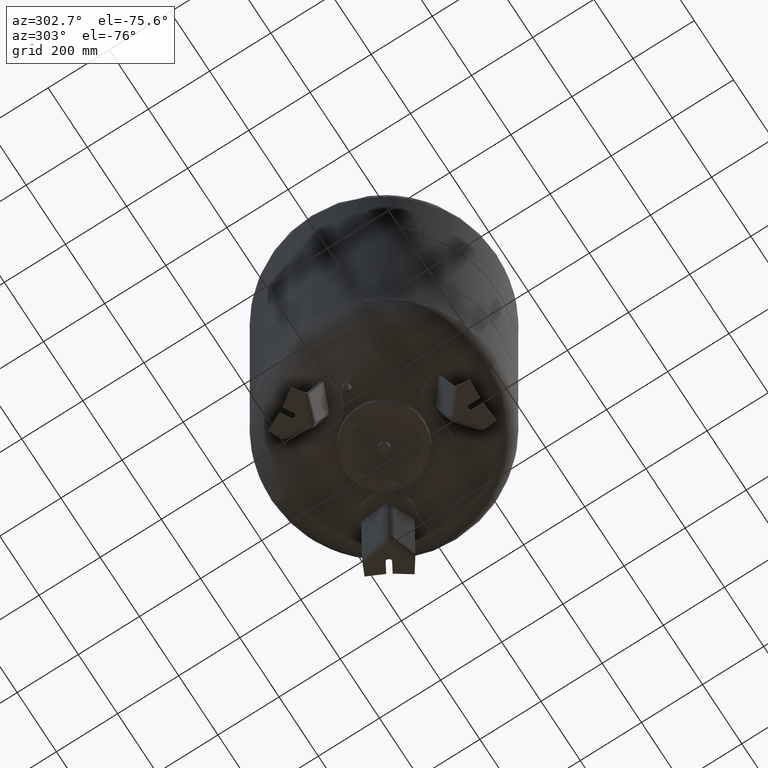
[diagram: clean part render]
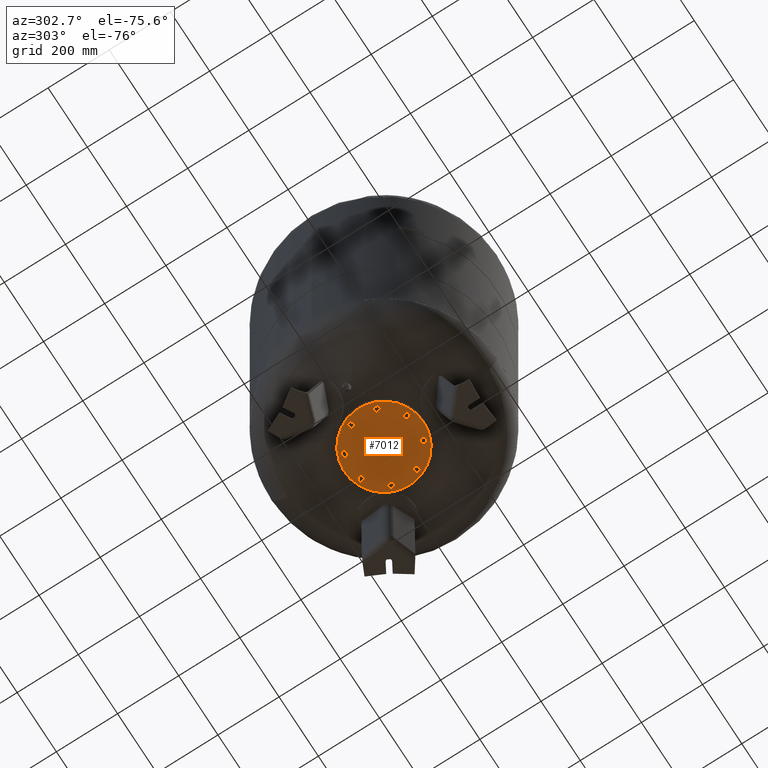
[diagram: same view with one face highlighted and labeled with its STEP entity id]
A machine part, auxiliary view. The second image highlights one B-rep face of the part: STEP entity #7012.
In plain terms, the highlighted planar face has unit normal (0, 0, 1).
Its self-contained STEP definition (entity closure, byte-faithful):
#3040=CARTESIAN_POINT('',(-120.104339226467270,-49.748846207461675,165.0));
#3041=VERTEX_POINT('',#3040);
#3050=CARTESIAN_POINT('',(120.104339226467290,49.748846207461661,165.0));
#3051=VERTEX_POINT('',#3050);
#3052=CARTESIAN_POINT('',(1.171630E-015,-2.828565E-015,165.0));
#3053=DIRECTION('',(0.0,0.0,1.0));
#3054=DIRECTION('',(-0.923879532511287,-0.382683432365090,0.0));
#3055=AXIS2_PLACEMENT_3D('',#3052,#3053,#3054);
#3056=CIRCLE('',#3055,130.0);
#3057=EDGE_CURVE('',#3041,#3051,#3056,.T.);
#3084=CARTESIAN_POINT('',(-15.567370122815184,-6.448215835351768,165.0));
#3085=VERTEX_POINT('',#3084);
#3101=CARTESIAN_POINT('',(15.567370122815188,6.448215835351761,165.0));
#3102=VERTEX_POINT('',#3101);
#3109=CARTESIAN_POINT('',(1.171630E-015,-2.828565E-015,165.0));
#3110=DIRECTION('',(0.0,0.0,1.0));
#3111=DIRECTION('',(-0.923879532511287,-0.382683432365090,0.0));
#3112=AXIS2_PLACEMENT_3D('',#3109,#3110,#3111);
#3113=CIRCLE('',#3112,16.850000000000005);
#3114=EDGE_CURVE('',#3085,#3102,#3113,.T.);
#4960=CARTESIAN_POINT('',(-34.766493326885701,-96.003251377674417,165.0));
#4961=VERTEX_POINT('',#4960);
#4962=CARTESIAN_POINT('',(-43.300926875592538,-92.468173254628084,165.0));
#4963=VERTEX_POINT('',#4962);
#4964=CARTESIAN_POINT('',(-34.766493326885701,-96.003251377674417,165.0));
#4965=DIRECTION('',(-0.923879532511286,0.382683432365091,0.0));
#4966=VECTOR('',#4965,9.237604307034024);
#4967=LINE('',#4964,#4966);
#4968=EDGE_CURVE('',#4961,#4963,#4967,.T.);
#5000=CARTESIAN_POINT('',(-33.560744011452989,-105.161826699287860,165.0));
#5001=VERTEX_POINT('',#5000);
#5002=CARTESIAN_POINT('',(-33.560744011452989,-105.161826699287860,165.0));
#5003=DIRECTION('',(-0.130526192220053,0.991444861373810,0.0));
#5004=VECTOR('',#5003,9.237604307034005);
#5005=LINE('',#5002,#5004);
#5006=EDGE_CURVE('',#5001,#4961,#5005,.T.);
#5031=CARTESIAN_POINT('',(-40.889428244727128,-110.785323897855010,165.0));
#5032=VERTEX_POINT('',#5031);
#5033=CARTESIAN_POINT('',(-40.889428244727128,-110.785323897855010,165.0));
#5034=DIRECTION('',(0.793353340291235,0.608761429008721,0.0));
#5035=VECTOR('',#5034,9.237604307034024);
#5036=LINE('',#5033,#5035);
#5037=EDGE_CURVE('',#5032,#5001,#5036,.T.);
#5062=CARTESIAN_POINT('',(-49.423861793433986,-107.250245774808700,165.0));
#5063=VERTEX_POINT('',#5062);
#5064=CARTESIAN_POINT('',(-49.423861793433986,-107.250245774808700,165.0));
#5065=DIRECTION('',(0.923879532511287,-0.382683432365088,0.0));
#5066=VECTOR('',#5065,9.237604307034033);
#5067=LINE('',#5064,#5066);
#5068=EDGE_CURVE('',#5063,#5032,#5067,.T.);
#5093=CARTESIAN_POINT('',(-50.629611108866676,-98.091670453195235,165.0));
#5094=VERTEX_POINT('',#5093);
#5095=CARTESIAN_POINT('',(-43.300926875592538,-92.468173254628084,165.0));
#5096=DIRECTION('',(-0.793353340291235,-0.608761429008721,0.0));
#5097=VECTOR('',#5096,9.237604307034024);
#5098=LINE('',#5095,#5097);
#5099=EDGE_CURVE('',#4963,#5094,#5098,.T.);
#5124=CARTESIAN_POINT('',(-50.629611108866676,-98.091670453195235,165.0));
#5125=DIRECTION('',(0.130526192220051,-0.991444861373811,0.0));
#5126=VECTOR('',#5125,9.237604307034030);
#5127=LINE('',#5124,#5126);
#5128=EDGE_CURVE('',#5094,#5063,#5127,.T.);
#5206=CARTESIAN_POINT('',(43.300926875592602,-92.468173254628084,165.0));
#5207=VERTEX_POINT('',#5206);
#5208=CARTESIAN_POINT('',(34.766493326885758,-96.003251377674403,165.0));
#5209=VERTEX_POINT('',#5208);
#5210=CARTESIAN_POINT('',(43.300926875592602,-92.468173254628084,165.0));
#5211=DIRECTION('',(-0.923879532511287,-0.382683432365090,0.0));
#5212=VECTOR('',#5211,9.237604307034026);
#5213=LINE('',#5210,#5212);
#5214=EDGE_CURVE('',#5207,#5209,#5213,.T.);
#5246=CARTESIAN_POINT('',(50.629611108866733,-98.091670453195221,165.0));
#5247=VERTEX_POINT('',#5246);
#5248=CARTESIAN_POINT('',(50.629611108866733,-98.091670453195221,165.0));
#5249=DIRECTION('',(-0.793353340291235,0.608761429008721,0.0));
#5250=VECTOR('',#5249,9.237604307034008);
#5251=LINE('',#5248,#5250);
#5252=EDGE_CURVE('',#5247,#5207,#5251,.T.);
#5277=CARTESIAN_POINT('',(49.423861793434035,-107.250245774808680,165.0));
#5278=VERTEX_POINT('',#5277);
#5279=CARTESIAN_POINT('',(49.423861793434035,-107.250245774808680,165.0));
#5280=DIRECTION('',(0.130526192220051,0.991444861373810,0.0));
#5281=VECTOR('',#5280,9.237604307034017);
#5282=LINE('',#5279,#5281);
#5283=EDGE_CURVE('',#5278,#5247,#5282,.T.);
#5308=CARTESIAN_POINT('',(40.889428244727185,-110.785323897854990,165.0));
#5309=VERTEX_POINT('',#5308);
#5310=CARTESIAN_POINT('',(40.889428244727185,-110.785323897854990,165.0));
#5311=DIRECTION('',(0.923879532511287,0.382683432365090,0.0));
#5312=VECTOR('',#5311,9.237604307034031);
#5313=LINE('',#5310,#5312);
#5314=EDGE_CURVE('',#5309,#5278,#5313,.T.);
#5339=CARTESIAN_POINT('',(33.560744011453068,-105.161826699287840,165.0));
#5340=VERTEX_POINT('',#5339);
#5341=CARTESIAN_POINT('',(34.766493326885758,-96.003251377674403,165.0));
#5342=DIRECTION('',(-0.130526192220051,-0.991444861373810,0.0));
#5343=VECTOR('',#5342,9.237604307034003);
#5344=LINE('',#5341,#5343);
#5345=EDGE_CURVE('',#5209,#5340,#5344,.T.);
#5370=CARTESIAN_POINT('',(33.560744011453068,-105.161826699287840,165.0));
#5371=DIRECTION('',(0.793353340291234,-0.608761429008722,0.0));
#5372=VECTOR('',#5371,9.237604307034006);
#5373=LINE('',#5370,#5372);
#5374=EDGE_CURVE('',#5340,#5309,#5373,.T.);
#5452=CARTESIAN_POINT('',(96.003251377674403,-34.766493326885708,165.0));
#5453=VERTEX_POINT('',#5452);
#5454=CARTESIAN_POINT('',(92.468173254628098,-43.300926875592552,165.0));
#5455=VERTEX_POINT('',#5454);
#5456=CARTESIAN_POINT('',(96.003251377674403,-34.766493326885708,165.0));
#5457=DIRECTION('',(-0.382683432365089,-0.923879532511287,0.0));
#5458=VECTOR('',#5457,9.237604307034019);
#5459=LINE('',#5456,#5458);
#5460=EDGE_CURVE('',#5453,#5455,#5459,.T.);
#5492=CARTESIAN_POINT('',(105.161826699287870,-33.560744011453004,165.0));
#5493=VERTEX_POINT('',#5492);
#5494=CARTESIAN_POINT('',(105.161826699287870,-33.560744011453004,165.0));
#5495=DIRECTION('',(-0.991444861373810,-0.130526192220052,0.0));
#5496=VECTOR('',#5495,9.237604307034031);
#5497=LINE('',#5494,#5496);
#5498=EDGE_CURVE('',#5493,#5453,#5497,.T.);
#5523=CARTESIAN_POINT('',(110.785323897855010,-40.889428244727164,165.0));
#5524=VERTEX_POINT('',#5523);
#5525=CARTESIAN_POINT('',(110.785323897855010,-40.889428244727164,165.0));
#5526=DIRECTION('',(-0.608761429008719,0.793353340291236,0.0));
#5527=VECTOR('',#5526,9.237604307034031);
#5528=LINE('',#5525,#5527);
#5529=EDGE_CURVE('',#5524,#5493,#5528,.T.);
#5554=CARTESIAN_POINT('',(107.250245774808690,-49.423861793434014,165.0));
#5555=VERTEX_POINT('',#5554);
#5556=CARTESIAN_POINT('',(107.250245774808690,-49.423861793434014,165.0));
#5557=DIRECTION('',(0.382683432365090,0.923879532511287,0.0));
#5558=VECTOR('',#5557,9.237604307034031);
#5559=LINE('',#5556,#5558);
#5560=EDGE_CURVE('',#5555,#5524,#5559,.T.);
#5585=CARTESIAN_POINT('',(98.091670453195235,-50.629611108866698,165.0));
#5586=VERTEX_POINT('',#5585);
#5587=CARTESIAN_POINT('',(92.468173254628098,-43.300926875592552,165.0));
#5588=DIRECTION('',(0.608761429008720,-0.793353340291236,0.0));
#5589=VECTOR('',#5588,9.237604307034021);
#5590=LINE('',#5587,#5589);
#5591=EDGE_CURVE('',#5455,#5586,#5590,.T.);
#5616=CARTESIAN_POINT('',(98.091670453195235,-50.629611108866698,165.0));
#5617=DIRECTION('',(0.991444861373811,0.130526192220050,0.0));
#5618=VECTOR('',#5617,9.237604307034015);
#5619=LINE('',#5616,#5618);
#5620=EDGE_CURVE('',#5586,#5555,#5619,.T.);
#5698=CARTESIAN_POINT('',(92.468173254628084,43.300926875592594,165.0));
#5699=VERTEX_POINT('',#5698);
#5700=CARTESIAN_POINT('',(96.003251377674403,34.766493326885758,165.0));
#5701=VERTEX_POINT('',#5700);
#5702=CARTESIAN_POINT('',(92.468173254628084,43.300926875592594,165.0));
#5703=DIRECTION('',(0.382683432365090,-0.923879532511287,0.0));
#5704=VECTOR('',#5703,9.237604307034019);
#5705=LINE('',#5702,#5704);
#5706=EDGE_CURVE('',#5699,#5701,#5705,.T.);
#5738=CARTESIAN_POINT('',(98.091670453195221,50.629611108866733,165.0));
#5739=VERTEX_POINT('',#5738);
#5740=CARTESIAN_POINT('',(98.091670453195221,50.629611108866733,165.0));
#5741=DIRECTION('',(-0.608761429008720,-0.793353340291235,0.0));
#5742=VECTOR('',#5741,9.237604307034015);
#5743=LINE('',#5740,#5742);
#5744=EDGE_CURVE('',#5739,#5699,#5743,.T.);
#5769=CARTESIAN_POINT('',(107.250245774808680,49.423861793434028,165.0));
#5770=VERTEX_POINT('',#5769);
#5771=CARTESIAN_POINT('',(107.250245774808680,49.423861793434028,165.0));
#5772=DIRECTION('',(-0.991444861373810,0.130526192220052,0.0));
#5773=VECTOR('',#5772,9.237604307034019);
#5774=LINE('',#5771,#5773);
#5775=EDGE_CURVE('',#5770,#5739,#5774,.T.);
#5800=CARTESIAN_POINT('',(110.785323897854990,40.889428244727178,165.0));
#5801=VERTEX_POINT('',#5800);
#5802=CARTESIAN_POINT('',(110.785323897854990,40.889428244727178,165.0));
#5803=DIRECTION('',(-0.382683432365090,0.923879532511287,0.0));
#5804=VECTOR('',#5803,9.237604307034031);
#5805=LINE('',#5802,#5804);
#5806=EDGE_CURVE('',#5801,#5770,#5805,.T.);
#5831=CARTESIAN_POINT('',(105.161826699287840,33.560744011453060,165.0));
#5832=VERTEX_POINT('',#5831);
#5833=CARTESIAN_POINT('',(96.003251377674403,34.766493326885758,165.0));
#5834=DIRECTION('',(0.991444861373810,-0.130526192220052,0.0));
#5835=VECTOR('',#5834,9.237604307034003);
#5836=LINE('',#5833,#5835);
#5837=EDGE_CURVE('',#5701,#5832,#5836,.T.);
#5862=CARTESIAN_POINT('',(105.161826699287840,33.560744011453060,165.0));
#5863=DIRECTION('',(0.608761429008722,0.793353340291234,0.0));
#5864=VECTOR('',#5863,9.237604307034006);
#5865=LINE('',#5862,#5864);
#5866=EDGE_CURVE('',#5832,#5801,#5865,.T.);
#5944=CARTESIAN_POINT('',(34.766493326885723,96.003251377674417,165.0));
#5945=VERTEX_POINT('',#5944);
#5946=CARTESIAN_POINT('',(43.300926875592552,92.468173254628084,165.0));
#5947=VERTEX_POINT('',#5946);
#5948=CARTESIAN_POINT('',(34.766493326885723,96.003251377674417,165.0));
#5949=DIRECTION('',(0.923879532511286,-0.382683432365092,0.0));
#5950=VECTOR('',#5949,9.237604307034017);
#5951=LINE('',#5948,#5950);
#5952=EDGE_CURVE('',#5945,#5947,#5951,.T.);
#5984=CARTESIAN_POINT('',(33.560744011453025,105.161826699287860,165.0));
#5985=VERTEX_POINT('',#5984);
#5986=CARTESIAN_POINT('',(33.560744011453025,105.161826699287860,165.0));
#5987=DIRECTION('',(0.130526192220052,-0.991444861373810,0.0));
#5988=VECTOR('',#5987,9.237604307034003);
#5989=LINE('',#5986,#5988);
#5990=EDGE_CURVE('',#5985,#5945,#5989,.T.);
#6015=CARTESIAN_POINT('',(40.889428244727164,110.785323897855010,165.0));
#6016=VERTEX_POINT('',#6015);
#6017=CARTESIAN_POINT('',(40.889428244727164,110.785323897855010,165.0));
#6018=DIRECTION('',(-0.793353340291235,-0.608761429008721,0.0));
#6019=VECTOR('',#6018,9.237604307034024);
#6020=LINE('',#6017,#6019);
#6021=EDGE_CURVE('',#6016,#5985,#6020,.T.);
#6046=CARTESIAN_POINT('',(49.423861793434014,107.250245774808690,165.0));
#6047=VERTEX_POINT('',#6046);
#6048=CARTESIAN_POINT('',(49.423861793434014,107.250245774808690,165.0));
#6049=DIRECTION('',(-0.923879532511287,0.382683432365090,0.0));
#6050=VECTOR('',#6049,9.237604307034031);
#6051=LINE('',#6048,#6050);
#6052=EDGE_CURVE('',#6047,#6016,#6051,.T.);
#6077=CARTESIAN_POINT('',(50.629611108866698,98.091670453195235,165.0));
#6078=VERTEX_POINT('',#6077);
#6079=CARTESIAN_POINT('',(43.300926875592552,92.468173254628084,165.0));
#6080=DIRECTION('',(0.793353340291235,0.608761429008721,0.0));
#6081=VECTOR('',#6080,9.237604307034030);
#6082=LINE('',#6079,#6081);
#6083=EDGE_CURVE('',#5947,#6078,#6082,.T.);
#6108=CARTESIAN_POINT('',(50.629611108866698,98.091670453195235,165.0));
#6109=DIRECTION('',(-0.130526192220050,0.991444861373811,0.0));
#6110=VECTOR('',#6109,9.237604307034015);
#6111=LINE('',#6108,#6110);
#6112=EDGE_CURVE('',#6078,#6047,#6111,.T.);
#6190=CARTESIAN_POINT('',(-43.300926875592580,92.468173254628084,165.0));
#6191=VERTEX_POINT('',#6190);
#6192=CARTESIAN_POINT('',(-34.766493326885751,96.003251377674403,165.0));
#6193=VERTEX_POINT('',#6192);
#6194=CARTESIAN_POINT('',(-43.300926875592580,92.468173254628084,165.0));
#6195=DIRECTION('',(0.923879532511287,0.382683432365090,0.0));
#6196=VECTOR('',#6195,9.237604307034012);
#6197=LINE('',#6194,#6196);
#6198=EDGE_CURVE('',#6191,#6193,#6197,.T.);
#6230=CARTESIAN_POINT('',(-50.629611108866705,98.091670453195235,165.0));
#6231=VERTEX_POINT('',#6230);
#6232=CARTESIAN_POINT('',(-50.629611108866705,98.091670453195235,165.0));
#6233=DIRECTION('',(0.793353340291234,-0.608761429008722,0.0));
#6234=VECTOR('',#6233,9.237604307034012);
#6235=LINE('',#6232,#6234);
#6236=EDGE_CURVE('',#6231,#6191,#6235,.T.);
#6261=CARTESIAN_POINT('',(-49.423861793434014,107.250245774808680,165.0));
#6262=VERTEX_POINT('',#6261);
#6263=CARTESIAN_POINT('',(-49.423861793434014,107.250245774808680,165.0));
#6264=DIRECTION('',(-0.130526192220051,-0.991444861373810,0.0));
#6265=VECTOR('',#6264,9.237604307034003);
#6266=LINE('',#6263,#6265);
#6267=EDGE_CURVE('',#6262,#6231,#6266,.T.);
#6292=CARTESIAN_POINT('',(-40.889428244727171,110.785323897855010,165.0));
#6293=VERTEX_POINT('',#6292);
#6294=CARTESIAN_POINT('',(-40.889428244727171,110.785323897855010,165.0));
#6295=DIRECTION('',(-0.923879532511286,-0.382683432365091,0.0));
#6296=VECTOR('',#6295,9.237604307034031);
#6297=LINE('',#6294,#6296);
#6298=EDGE_CURVE('',#6293,#6262,#6297,.T.);
#6323=CARTESIAN_POINT('',(-33.560744011453032,105.161826699287860,165.0));
#6324=VERTEX_POINT('',#6323);
#6325=CARTESIAN_POINT('',(-34.766493326885751,96.003251377674403,165.0));
#6326=DIRECTION('',(0.130526192220054,0.991444861373810,0.0));
#6327=VECTOR('',#6326,9.237604307034019);
#6328=LINE('',#6325,#6327);
#6329=EDGE_CURVE('',#6193,#6324,#6328,.T.);
#6354=CARTESIAN_POINT('',(-33.560744011453032,105.161826699287860,165.0));
#6355=DIRECTION('',(-0.793353340291235,0.608761429008721,0.0));
#6356=VECTOR('',#6355,9.237604307034024);
#6357=LINE('',#6354,#6356);
#6358=EDGE_CURVE('',#6324,#6293,#6357,.T.);
#6436=CARTESIAN_POINT('',(-96.003251377674417,34.766493326885723,165.0));
#6437=VERTEX_POINT('',#6436);
#6438=CARTESIAN_POINT('',(-92.468173254628084,43.300926875592552,165.0));
#6439=VERTEX_POINT('',#6438);
#6440=CARTESIAN_POINT('',(-96.003251377674417,34.766493326885723,165.0));
#6441=DIRECTION('',(0.382683432365092,0.923879532511286,0.0));
#6442=VECTOR('',#6441,9.237604307034017);
#6443=LINE('',#6440,#6442);
#6444=EDGE_CURVE('',#6437,#6439,#6443,.T.);
#6476=CARTESIAN_POINT('',(-105.161826699287860,33.560744011453025,165.0));
#6477=VERTEX_POINT('',#6476);
#6478=CARTESIAN_POINT('',(-105.161826699287860,33.560744011453025,165.0));
#6479=DIRECTION('',(0.991444861373810,0.130526192220052,0.0));
#6480=VECTOR('',#6479,9.237604307034003);
#6481=LINE('',#6478,#6480);
#6482=EDGE_CURVE('',#6477,#6437,#6481,.T.);
#6507=CARTESIAN_POINT('',(-110.785323897855010,40.889428244727164,165.0));
#6508=VERTEX_POINT('',#6507);
#6509=CARTESIAN_POINT('',(-110.785323897855010,40.889428244727164,165.0));
#6510=DIRECTION('',(0.608761429008721,-0.793353340291235,0.0));
#6511=VECTOR('',#6510,9.237604307034024);
#6512=LINE('',#6509,#6511);
#6513=EDGE_CURVE('',#6508,#6477,#6512,.T.);
#6538=CARTESIAN_POINT('',(-107.250245774808690,49.423861793434014,165.0));
#6539=VERTEX_POINT('',#6538);
#6540=CARTESIAN_POINT('',(-107.250245774808690,49.423861793434014,165.0));
#6541=DIRECTION('',(-0.382683432365090,-0.923879532511287,0.0));
#6542=VECTOR('',#6541,9.237604307034031);
#6543=LINE('',#6540,#6542);
#6544=EDGE_CURVE('',#6539,#6508,#6543,.T.);
#6569=CARTESIAN_POINT('',(-98.091670453195235,50.629611108866698,165.0));
#6570=VERTEX_POINT('',#6569);
#6571=CARTESIAN_POINT('',(-92.468173254628084,43.300926875592552,165.0));
#6572=DIRECTION('',(-0.608761429008721,0.793353340291235,0.0));
#6573=VECTOR('',#6572,9.237604307034030);
#6574=LINE('',#6571,#6573);
#6575=EDGE_CURVE('',#6439,#6570,#6574,.T.);
#6600=CARTESIAN_POINT('',(-98.091670453195235,50.629611108866698,165.0));
#6601=DIRECTION('',(-0.991444861373811,-0.130526192220050,0.0));
#6602=VECTOR('',#6601,9.237604307034015);
#6603=LINE('',#6600,#6602);
#6604=EDGE_CURVE('',#6570,#6539,#6603,.T.);
#6682=CARTESIAN_POINT('',(-92.468173254628084,-43.300926875592587,165.0));
#6683=VERTEX_POINT('',#6682);
#6684=CARTESIAN_POINT('',(-96.003251377674403,-34.766493326885744,165.0));
#6685=VERTEX_POINT('',#6684);
#6686=CARTESIAN_POINT('',(-92.468173254628084,-43.300926875592587,165.0));
#6687=DIRECTION('',(-0.382683432365090,0.923879532511287,0.0));
#6688=VECTOR('',#6687,9.237604307034026);
#6689=LINE('',#6686,#6688);
#6690=EDGE_CURVE('',#6683,#6685,#6689,.T.);
#6722=CARTESIAN_POINT('',(-98.091670453195221,-50.629611108866719,165.0));
#6723=VERTEX_POINT('',#6722);
#6724=CARTESIAN_POINT('',(-98.091670453195221,-50.629611108866719,165.0));
#6725=DIRECTION('',(0.608761429008721,0.793353340291235,0.0));
#6726=VECTOR('',#6725,9.237604307034008);
#6727=LINE('',#6724,#6726);
#6728=EDGE_CURVE('',#6723,#6683,#6727,.T.);
#6753=CARTESIAN_POINT('',(-107.250245774808690,-49.423861793434014,165.0));
#6754=VERTEX_POINT('',#6753);
#6755=CARTESIAN_POINT('',(-107.250245774808690,-49.423861793434014,165.0));
#6756=DIRECTION('',(0.991444861373810,-0.130526192220052,0.0));
#6757=VECTOR('',#6756,9.237604307034031);
#6758=LINE('',#6755,#6757);
#6759=EDGE_CURVE('',#6754,#6723,#6758,.T.);
#6784=CARTESIAN_POINT('',(-110.785323897855010,-40.889428244727164,165.0));
#6785=VERTEX_POINT('',#6784);
#6786=CARTESIAN_POINT('',(-110.785323897855010,-40.889428244727164,165.0));
#6787=DIRECTION('',(0.382683432365090,-0.923879532511287,0.0));
#6788=VECTOR('',#6787,9.237604307034031);
#6789=LINE('',#6786,#6788);
#6790=EDGE_CURVE('',#6785,#6754,#6789,.T.);
#6815=CARTESIAN_POINT('',(-105.161826699287860,-33.560744011453039,165.0));
#6816=VERTEX_POINT('',#6815);
#6817=CARTESIAN_POINT('',(-96.003251377674403,-34.766493326885744,165.0));
#6818=DIRECTION('',(-0.991444861373810,0.130526192220052,0.0));
#6819=VECTOR('',#6818,9.237604307034019);
#6820=LINE('',#6817,#6819);
#6821=EDGE_CURVE('',#6685,#6816,#6820,.T.);
#6846=CARTESIAN_POINT('',(-105.161826699287860,-33.560744011453039,165.0));
#6847=DIRECTION('',(-0.608761429008722,-0.793353340291234,0.0));
#6848=VECTOR('',#6847,9.237604307034012);
#6849=LINE('',#6846,#6848);
#6850=EDGE_CURVE('',#6816,#6785,#6849,.T.);
#6883=CARTESIAN_POINT('',(1.171630E-015,-2.828565E-015,165.0));
#6884=DIRECTION('',(0.0,0.0,1.0));
#6885=DIRECTION('',(-0.923879532511287,-0.382683432365090,0.0));
#6886=AXIS2_PLACEMENT_3D('',#6883,#6884,#6885);
#6887=CIRCLE('',#6886,16.850000000000005);
#6888=EDGE_CURVE('',#3102,#3085,#6887,.T.);
#6925=CARTESIAN_POINT('',(1.171630E-015,-2.828565E-015,165.0));
#6926=DIRECTION('',(0.0,0.0,1.0));
#6927=DIRECTION('',(-0.923879532511287,-0.382683432365090,0.0));
#6928=AXIS2_PLACEMENT_3D('',#6925,#6926,#6927);
#6929=CIRCLE('',#6928,130.0);
#6930=EDGE_CURVE('',#3051,#3041,#6929,.T.);
#6935=CARTESIAN_POINT('',(1.171630E-015,-2.828565E-015,165.0));
#6936=DIRECTION('',(0.0,0.0,1.0));
#6937=DIRECTION('',(-0.923879532511287,-0.382683432365090,0.0));
#6938=AXIS2_PLACEMENT_3D('',#6935,#6936,#6937);
#6939=PLANE('',#6938);
#6940=ORIENTED_EDGE('',*,*,#6930,.F.);
#6941=ORIENTED_EDGE('',*,*,#3057,.F.);
#6942=EDGE_LOOP('',(#6940,#6941));
#6943=FACE_OUTER_BOUND('',#6942,.T.);
#6944=ORIENTED_EDGE('',*,*,#4968,.T.);
#6945=ORIENTED_EDGE('',*,*,#5099,.T.);
#6946=ORIENTED_EDGE('',*,*,#5128,.T.);
#6947=ORIENTED_EDGE('',*,*,#5068,.T.);
#6948=ORIENTED_EDGE('',*,*,#5037,.T.);
#6949=ORIENTED_EDGE('',*,*,#5006,.T.);
#6950=EDGE_LOOP('',(#6944,#6945,#6946,#6947,#6948,#6949));
#6951=FACE_BOUND('',#6950,.T.);
#6952=ORIENTED_EDGE('',*,*,#5214,.T.);
#6953=ORIENTED_EDGE('',*,*,#5345,.T.);
#6954=ORIENTED_EDGE('',*,*,#5374,.T.);
#6955=ORIENTED_EDGE('',*,*,#5314,.T.);
#6956=ORIENTED_EDGE('',*,*,#5283,.T.);
#6957=ORIENTED_EDGE('',*,*,#5252,.T.);
#6958=EDGE_LOOP('',(#6952,#6953,#6954,#6955,#6956,#6957));
#6959=FACE_BOUND('',#6958,.T.);
#6960=ORIENTED_EDGE('',*,*,#5460,.T.);
#6961=ORIENTED_EDGE('',*,*,#5591,.T.);
#6962=ORIENTED_EDGE('',*,*,#5620,.T.);
#6963=ORIENTED_EDGE('',*,*,#5560,.T.);
#6964=ORIENTED_EDGE('',*,*,#5529,.T.);
#6965=ORIENTED_EDGE('',*,*,#5498,.T.);
#6966=EDGE_LOOP('',(#6960,#6961,#6962,#6963,#6964,#6965));
#6967=FACE_BOUND('',#6966,.T.);
#6968=ORIENTED_EDGE('',*,*,#5706,.T.);
#6969=ORIENTED_EDGE('',*,*,#5837,.T.);
#6970=ORIENTED_EDGE('',*,*,#5866,.T.);
#6971=ORIENTED_EDGE('',*,*,#5806,.T.);
#6972=ORIENTED_EDGE('',*,*,#5775,.T.);
#6973=ORIENTED_EDGE('',*,*,#5744,.T.);
#6974=EDGE_LOOP('',(#6968,#6969,#6970,#6971,#6972,#6973));
#6975=FACE_BOUND('',#6974,.T.);
#6976=ORIENTED_EDGE('',*,*,#5952,.T.);
#6977=ORIENTED_EDGE('',*,*,#6083,.T.);
#6978=ORIENTED_EDGE('',*,*,#6112,.T.);
#6979=ORIENTED_EDGE('',*,*,#6052,.T.);
#6980=ORIENTED_EDGE('',*,*,#6021,.T.);
#6981=ORIENTED_EDGE('',*,*,#5990,.T.);
#6982=EDGE_LOOP('',(#6976,#6977,#6978,#6979,#6980,#6981));
#6983=FACE_BOUND('',#6982,.T.);
#6984=ORIENTED_EDGE('',*,*,#6198,.T.);
#6985=ORIENTED_EDGE('',*,*,#6329,.T.);
#6986=ORIENTED_EDGE('',*,*,#6358,.T.);
#6987=ORIENTED_EDGE('',*,*,#6298,.T.);
#6988=ORIENTED_EDGE('',*,*,#6267,.T.);
#6989=ORIENTED_EDGE('',*,*,#6236,.T.);
#6990=EDGE_LOOP('',(#6984,#6985,#6986,#6987,#6988,#6989));
#6991=FACE_BOUND('',#6990,.T.);
#6992=ORIENTED_EDGE('',*,*,#6444,.T.);
#6993=ORIENTED_EDGE('',*,*,#6575,.T.);
#6994=ORIENTED_EDGE('',*,*,#6604,.T.);
#6995=ORIENTED_EDGE('',*,*,#6544,.T.);
#6996=ORIENTED_EDGE('',*,*,#6513,.T.);
#6997=ORIENTED_EDGE('',*,*,#6482,.T.);
#6998=EDGE_LOOP('',(#6992,#6993,#6994,#6995,#6996,#6997));
#6999=FACE_BOUND('',#6998,.T.);
#7000=ORIENTED_EDGE('',*,*,#6690,.T.);
#7001=ORIENTED_EDGE('',*,*,#6821,.T.);
#7002=ORIENTED_EDGE('',*,*,#6850,.T.);
#7003=ORIENTED_EDGE('',*,*,#6790,.T.);
#7004=ORIENTED_EDGE('',*,*,#6759,.T.);
#7005=ORIENTED_EDGE('',*,*,#6728,.T.);
#7006=EDGE_LOOP('',(#7000,#7001,#7002,#7003,#7004,#7005));
#7007=FACE_BOUND('',#7006,.T.);
#7008=ORIENTED_EDGE('',*,*,#6888,.T.);
#7009=ORIENTED_EDGE('',*,*,#3114,.T.);
#7010=EDGE_LOOP('',(#7008,#7009));
#7011=FACE_BOUND('',#7010,.T.);
#7012=ADVANCED_FACE('',(#6943,#6951,#6959,#6967,#6975,#6983,#6991,#6999,#7007,#7011),#6939,.F.);